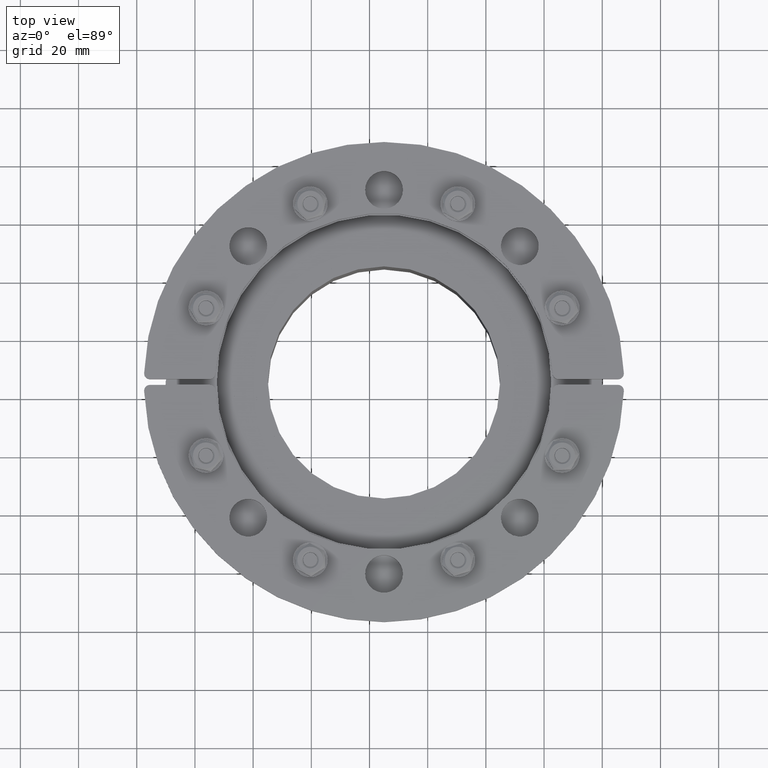
[diagram: clean part render]
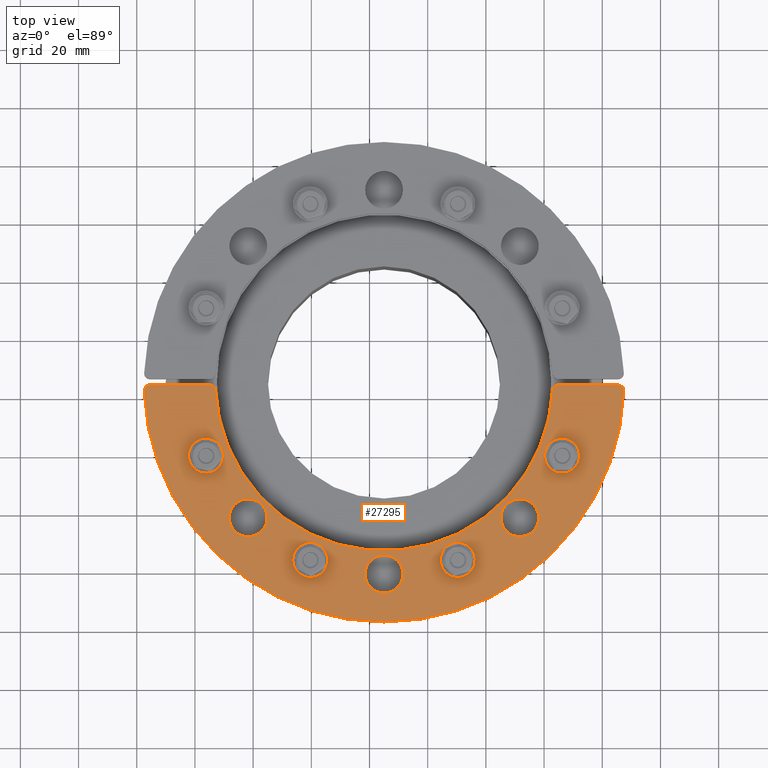
[diagram: same view with one face highlighted and labeled with its STEP entity id]
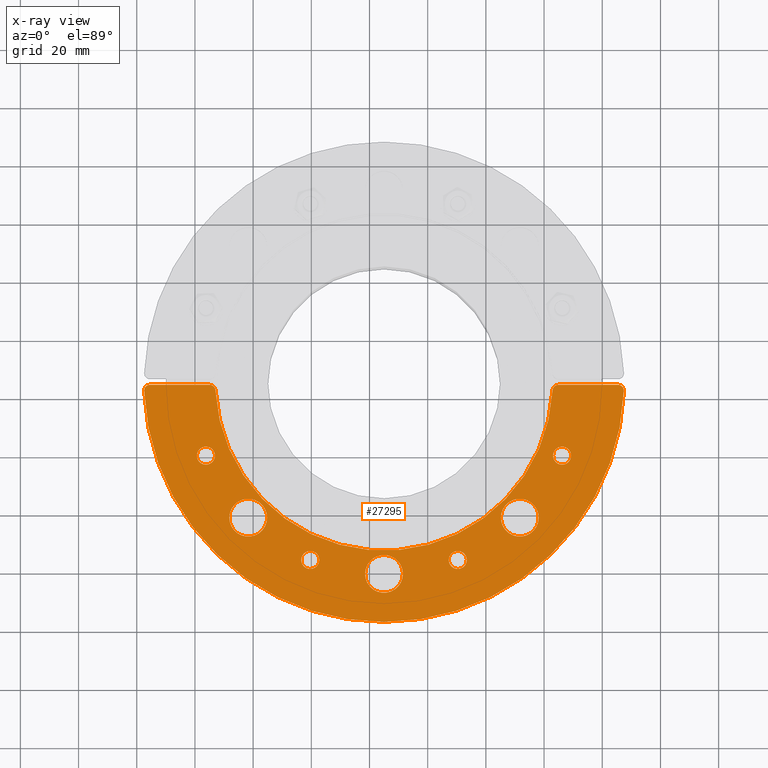
[diagram: x-ray of the same camera — body ghosted, the highlighted face saturated]
A machine part, top view. The second image highlights one B-rep face of the part: STEP entity #27295.
The next image is the same camera in x-ray: the body ghosted, the highlighted face saturated — about 0% of this face is hidden behind the body in this view.
In plain terms, the highlighted planar face has unit normal (-0, -0, 1).
Its self-contained STEP definition (entity closure, byte-faithful):
#26782=CARTESIAN_POINT('',(53.16904755831213,46.669047558312158,0.0));
#26783=VERTEX_POINT('',#26782);
#26784=CARTESIAN_POINT('',(46.669047558312123,46.669047558312158,0.0));
#26785=DIRECTION('',(0.0,0.0,-1.0));
#26786=DIRECTION('',(-1.0,0.0,0.0));
#26787=AXIS2_PLACEMENT_3D('',#26784,#26785,#26786);
#26788=CIRCLE('',#26787,6.5);
#26789=EDGE_CURVE('',#26783,#26783,#26788,.T.);
#26810=CARTESIAN_POINT('',(-40.169047558312158,46.66904755831213,0.0));
#26811=VERTEX_POINT('',#26810);
#26812=CARTESIAN_POINT('',(-46.669047558312158,46.66904755831213,0.0));
#26813=DIRECTION('',(0.0,0.0,-1.0));
#26814=DIRECTION('',(-1.0,0.0,0.0));
#26815=AXIS2_PLACEMENT_3D('',#26812,#26813,#26814);
#26816=CIRCLE('',#26815,6.5);
#26817=EDGE_CURVE('',#26811,#26811,#26816,.T.);
#26838=CARTESIAN_POINT('',(6.499999999999988,66.000000000000014,0.0));
#26839=VERTEX_POINT('',#26838);
#26840=CARTESIAN_POINT('',(-1.212400E-014,66.000000000000014,0.0));
#26841=DIRECTION('',(0.0,0.0,-1.0));
#26842=DIRECTION('',(-1.0,0.0,0.0));
#26843=AXIS2_PLACEMENT_3D('',#26840,#26841,#26842);
#26844=CIRCLE('',#26843,6.5);
#26845=EDGE_CURVE('',#26839,#26839,#26844,.T.);
#26866=CARTESIAN_POINT('',(82.4426906383448,3.074534161490685,0.0));
#26867=VERTEX_POINT('',#26866);
#26874=CARTESIAN_POINT('',(80.444079956203097,1.0,0.0));
#26875=VERTEX_POINT('',#26874);
#26876=CARTESIAN_POINT('',(80.444079956203097,3.0,0.0));
#26877=DIRECTION('',(0.0,0.0,-1.0));
#26878=DIRECTION('',(0.720162162552761,-0.693805779470977,0.0));
#26879=AXIS2_PLACEMENT_3D('',#26876,#26877,#26878);
#26880=CIRCLE('',#26879,2.0);
#26881=EDGE_CURVE('',#26867,#26875,#26880,.T.);
#26907=CARTESIAN_POINT('',(-82.4426906383448,3.074534161490687,0.0));
#26908=VERTEX_POINT('',#26907);
#26915=CARTESIAN_POINT('',(0.0,0.0,0.0));
#26916=DIRECTION('',(0.0,0.0,1.0));
#26917=DIRECTION('',(0.999926535409833,0.012121212121212,0.0));
#26918=AXIS2_PLACEMENT_3D('',#26915,#26916,#26917);
#26919=CIRCLE('',#26918,82.499999999999972);
#26920=EDGE_CURVE('',#26867,#26908,#26919,.T.);
#27044=CARTESIAN_POINT('',(59.924953066314551,1.0,0.0));
#27045=VERTEX_POINT('',#27044);
#27052=CARTESIAN_POINT('',(57.927454630770725,2.900000000000005,0.0));
#27053=VERTEX_POINT('',#27052);
#27054=CARTESIAN_POINT('',(59.924953066314551,3.000000000000005,0.0));
#27055=DIRECTION('',(0.0,0.0,-1.0));
#27056=DIRECTION('',(-0.689202437604515,-0.724568837309468,0.0));
#27057=AXIS2_PLACEMENT_3D('',#27054,#27055,#27056);
#27058=CIRCLE('',#27057,2.0);
#27059=EDGE_CURVE('',#27045,#27053,#27058,.T.);
#27076=CARTESIAN_POINT('',(-57.927454630770725,2.9,0.0));
#27077=VERTEX_POINT('',#27076);
#27078=CARTESIAN_POINT('',(0.0,0.0,0.0));
#27079=DIRECTION('',(0.0,0.0,-1.0));
#27080=DIRECTION('',(-0.999851356372274,-0.017241379310345,0.0));
#27081=AXIS2_PLACEMENT_3D('',#27078,#27079,#27080);
#27082=CIRCLE('',#27081,58.000000000000007);
#27083=EDGE_CURVE('',#27077,#27053,#27082,.T.);
#27102=CARTESIAN_POINT('',(-59.924953066314551,1.0,0.0));
#27103=VERTEX_POINT('',#27102);
#27104=CARTESIAN_POINT('',(-59.924953066314551,3.0,0.0));
#27105=DIRECTION('',(0.0,0.0,-1.0));
#27106=DIRECTION('',(0.689202437604515,-0.724568837309468,0.0));
#27107=AXIS2_PLACEMENT_3D('',#27104,#27105,#27106);
#27108=CIRCLE('',#27107,2.0);
#27109=EDGE_CURVE('',#27077,#27103,#27108,.T.);
#27126=CARTESIAN_POINT('',(-80.444079956203097,1.0,0.0));
#27127=VERTEX_POINT('',#27126);
#27134=CARTESIAN_POINT('',(-80.444079956203097,3.000000000000004,0.0));
#27135=DIRECTION('',(0.0,0.0,-1.0));
#27136=DIRECTION('',(-0.720162162552761,-0.693805779470978,0.0));
#27137=AXIS2_PLACEMENT_3D('',#27134,#27135,#27136);
#27138=CIRCLE('',#27137,2.0);
#27139=EDGE_CURVE('',#27127,#26908,#27138,.T.);
#27153=CARTESIAN_POINT('',(28.452777394187187,61.207019028872757,0.0));
#27154=VERTEX_POINT('',#27153);
#27155=CARTESIAN_POINT('',(25.352777394187189,61.207019028872757,0.0));
#27156=DIRECTION('',(0.0,0.0,-1.0));
#27157=DIRECTION('',(-1.0,0.0,0.0));
#27158=AXIS2_PLACEMENT_3D('',#27155,#27156,#27157);
#27159=CIRCLE('',#27158,3.099999999999997);
#27160=EDGE_CURVE('',#27154,#27154,#27159,.T.);
#27173=CARTESIAN_POINT('',(-58.107019028872742,25.352777394187221,0.0));
#27174=VERTEX_POINT('',#27173);
#27175=CARTESIAN_POINT('',(-61.20701902887275,25.352777394187221,0.0));
#27176=DIRECTION('',(0.0,0.0,-1.0));
#27177=DIRECTION('',(-1.0,0.0,0.0));
#27178=AXIS2_PLACEMENT_3D('',#27175,#27176,#27177);
#27179=CIRCLE('',#27178,3.100000000000005);
#27180=EDGE_CURVE('',#27174,#27174,#27179,.T.);
#27193=CARTESIAN_POINT('',(-22.252777394187181,61.207019028872764,0.0));
#27194=VERTEX_POINT('',#27193);
#27195=CARTESIAN_POINT('',(-25.352777394187186,61.207019028872764,0.0));
#27196=DIRECTION('',(0.0,0.0,-1.0));
#27197=DIRECTION('',(-1.0,0.0,0.0));
#27198=AXIS2_PLACEMENT_3D('',#27195,#27196,#27197);
#27199=CIRCLE('',#27198,3.100000000000004);
#27200=EDGE_CURVE('',#27194,#27194,#27199,.T.);
#27213=CARTESIAN_POINT('',(64.307019028872759,25.352777394187211,0.0));
#27214=VERTEX_POINT('',#27213);
#27215=CARTESIAN_POINT('',(61.20701902887275,25.352777394187211,0.0));
#27216=DIRECTION('',(0.0,0.0,-1.0));
#27217=DIRECTION('',(-1.0,0.0,0.0));
#27218=AXIS2_PLACEMENT_3D('',#27215,#27216,#27217);
#27219=CIRCLE('',#27218,3.100000000000003);
#27220=EDGE_CURVE('',#27214,#27214,#27219,.T.);
#27231=CARTESIAN_POINT('',(-80.444079956203097,1.0,0.0));
#27232=DIRECTION('',(1.0,0.0,0.0));
#27233=VECTOR('',#27232,20.519126889888547);
#27234=LINE('',#27231,#27233);
#27235=EDGE_CURVE('',#27127,#27103,#27234,.T.);
#27248=CARTESIAN_POINT('',(59.924953066314558,1.0,0.0));
#27249=DIRECTION('',(1.0,0.0,0.0));
#27250=VECTOR('',#27249,20.51912688988854);
#27251=LINE('',#27248,#27250);
#27252=EDGE_CURVE('',#27045,#26875,#27251,.T.);
#27259=CARTESIAN_POINT('',(1.024684E-013,40.586098782080043,0.0));
#27260=DIRECTION('',(0.0,0.0,1.0));
#27261=DIRECTION('',(1.0,0.0,0.0));
#27262=AXIS2_PLACEMENT_3D('',#27259,#27260,#27261);
#27263=PLANE('',#27262);
#27264=ORIENTED_EDGE('',*,*,#26881,.F.);
#27265=ORIENTED_EDGE('',*,*,#26920,.T.);
#27266=ORIENTED_EDGE('',*,*,#27139,.F.);
#27267=ORIENTED_EDGE('',*,*,#27235,.T.);
#27268=ORIENTED_EDGE('',*,*,#27109,.F.);
#27269=ORIENTED_EDGE('',*,*,#27083,.T.);
#27270=ORIENTED_EDGE('',*,*,#27059,.F.);
#27271=ORIENTED_EDGE('',*,*,#27252,.T.);
#27272=EDGE_LOOP('',(#27264,#27265,#27266,#27267,#27268,#27269,#27270,#27271));
#27273=FACE_OUTER_BOUND('',#27272,.T.);
#27274=ORIENTED_EDGE('',*,*,#26789,.T.);
#27275=EDGE_LOOP('',(#27274));
#27276=FACE_BOUND('',#27275,.T.);
#27277=ORIENTED_EDGE('',*,*,#26817,.T.);
#27278=EDGE_LOOP('',(#27277));
#27279=FACE_BOUND('',#27278,.T.);
#27280=ORIENTED_EDGE('',*,*,#26845,.T.);
#27281=EDGE_LOOP('',(#27280));
#27282=FACE_BOUND('',#27281,.T.);
#27283=ORIENTED_EDGE('',*,*,#27160,.T.);
#27284=EDGE_LOOP('',(#27283));
#27285=FACE_BOUND('',#27284,.T.);
#27286=ORIENTED_EDGE('',*,*,#27180,.T.);
#27287=EDGE_LOOP('',(#27286));
#27288=FACE_BOUND('',#27287,.T.);
#27289=ORIENTED_EDGE('',*,*,#27200,.T.);
#27290=EDGE_LOOP('',(#27289));
#27291=FACE_BOUND('',#27290,.T.);
#27292=ORIENTED_EDGE('',*,*,#27220,.T.);
#27293=EDGE_LOOP('',(#27292));
#27294=FACE_BOUND('',#27293,.T.);
#27295=ADVANCED_FACE('',(#27273,#27276,#27279,#27282,#27285,#27288,#27291,#27294),#27263,.T.);